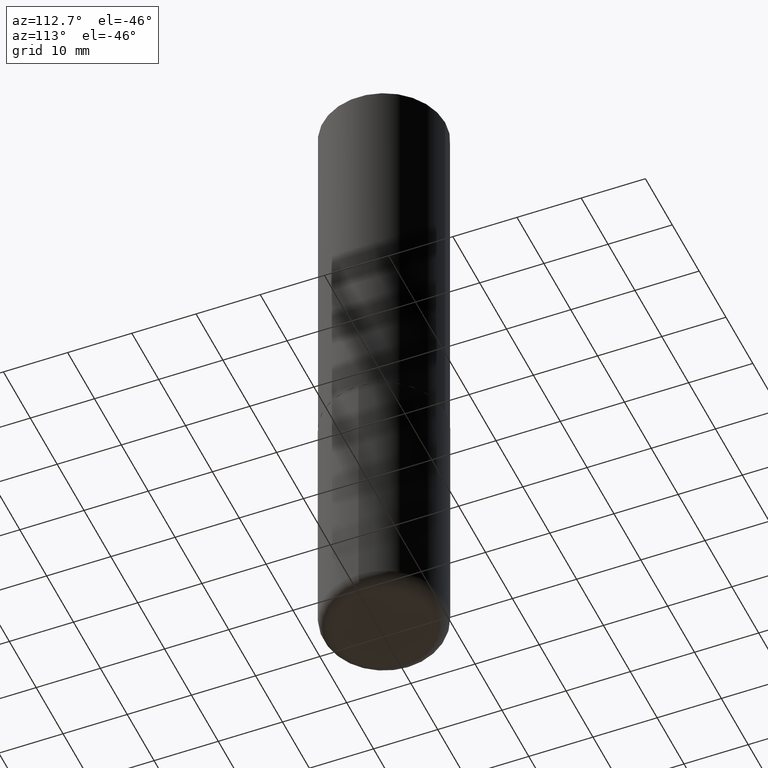
[diagram: clean part render]
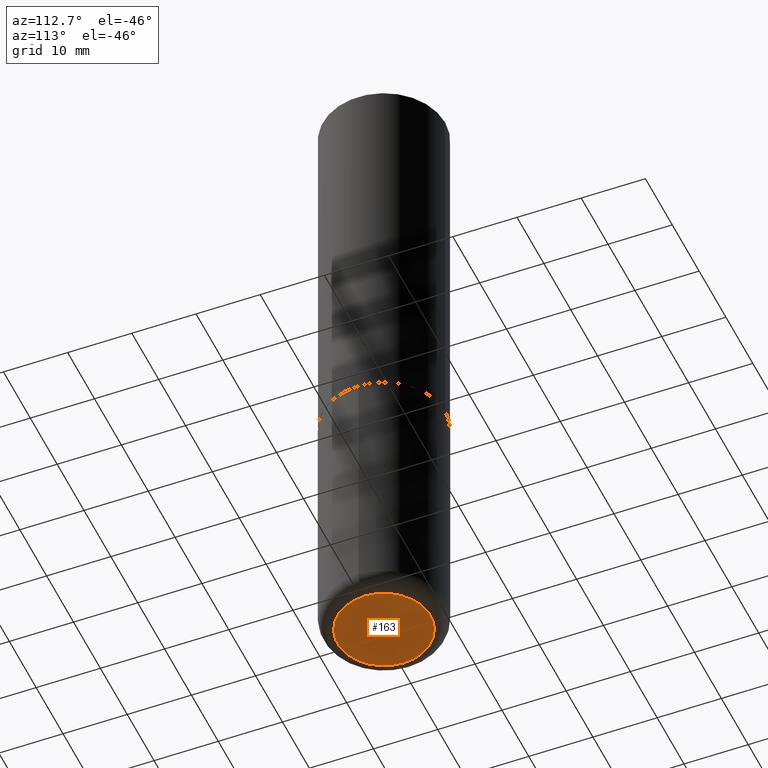
[diagram: same view with one face highlighted and labeled with its STEP entity id]
A machine part, auxiliary view. The second image highlights one B-rep face of the part: STEP entity #163.
In plain terms, the highlighted planar face has unit normal (0, -0, -1).
Its self-contained STEP definition (entity closure, byte-faithful):
#38 = PLANE ( 'NONE',  #42 ) ;
#42 = AXIS2_PLACEMENT_3D ( 'NONE', #396, #233, #259 ) ;
#81 = CARTESIAN_POINT ( 'NONE',  ( -0.2850000000000000311, -1.146401766711631116E-14, -4.000000000000000000 ) ) ;
#96 = CIRCLE ( 'NONE', #232, 0.2850000000000000311 ) ;
#108 = FACE_OUTER_BOUND ( 'NONE', #212, .T. ) ;
#111 = CARTESIAN_POINT ( 'NONE',  ( 9.781875224740546387E-29, -1.396592535537258233E-14, -4.000000000000000000 ) ) ;
#160 = AXIS2_PLACEMENT_3D ( 'NONE', #111, #237, #370 ) ;
#163 = ADVANCED_FACE ( 'NONE', ( #108 ), #38, .T. ) ;
#182 = DIRECTION ( 'NONE',  ( -2.445468806185136597E-29, 3.491481338843145583E-15, 1.000000000000000000 ) ) ;
#184 = CIRCLE ( 'NONE', #160, 0.2850000000000000311 ) ;
#206 = VERTEX_POINT ( 'NONE', #295 ) ;
#212 = EDGE_LOOP ( 'NONE', ( #374, #253 ) ) ;
#232 = AXIS2_PLACEMENT_3D ( 'NONE', #278, #182, #310 ) ;
#233 = DIRECTION ( 'NONE',  ( 2.438088387897960049E-29, -3.491481338843145188E-15, -1.000000000000000000 ) ) ;
#236 = EDGE_CURVE ( 'NONE', #206, #413, #96, .T. ) ;
#237 = DIRECTION ( 'NONE',  ( -2.445468806185136597E-29, 3.491481338843145583E-15, 1.000000000000000000 ) ) ;
#253 = ORIENTED_EDGE ( 'NONE', *, *, #380, .F. ) ;
#259 = DIRECTION ( 'NONE',  ( -1.000000000000000000, 6.982962677686265922E-15, -4.876176775795935793E-29 ) ) ;
#278 = CARTESIAN_POINT ( 'NONE',  ( 9.781875224740546387E-29, -1.396592535537258233E-14, -4.000000000000000000 ) ) ;
#295 = CARTESIAN_POINT ( 'NONE',  ( 0.2850000000000000311, -1.595606971851316740E-14, -4.000000000000000000 ) ) ;
#310 = DIRECTION ( 'NONE',  ( 1.000000000000000000, -6.982962677686266711E-15, 0.000000000000000000 ) ) ;
#370 = DIRECTION ( 'NONE',  ( 1.000000000000000000, -6.982962677686266711E-15, 0.000000000000000000 ) ) ;
#374 = ORIENTED_EDGE ( 'NONE', *, *, #236, .F. ) ;
#380 = EDGE_CURVE ( 'NONE', #413, #206, #184, .T. ) ;
#396 = CARTESIAN_POINT ( 'NONE',  ( 9.781875224740546387E-29, -1.396592535537258233E-14, -4.000000000000000000 ) ) ;
#413 = VERTEX_POINT ( 'NONE', #81 ) ;